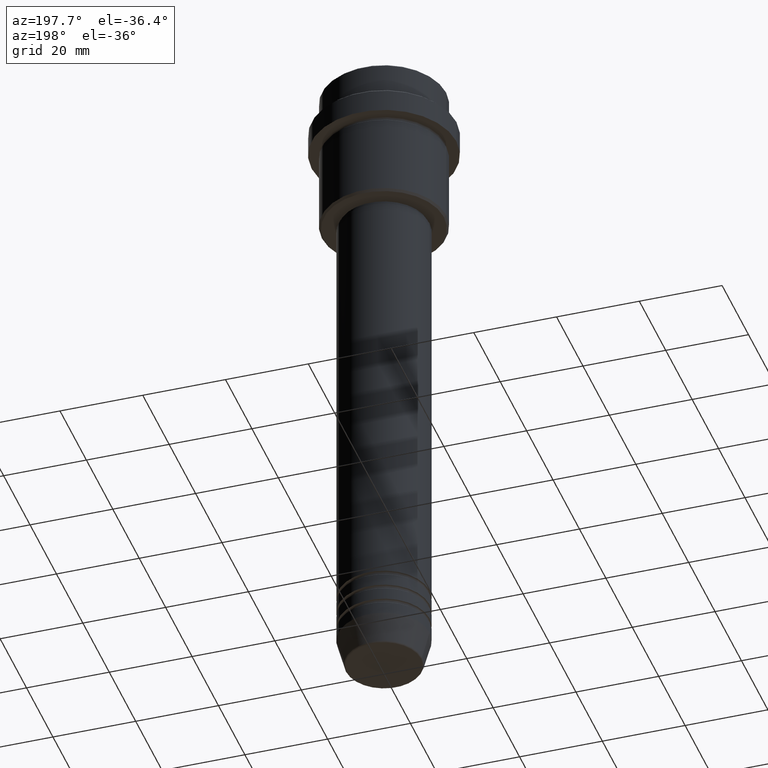
[diagram: clean part render]
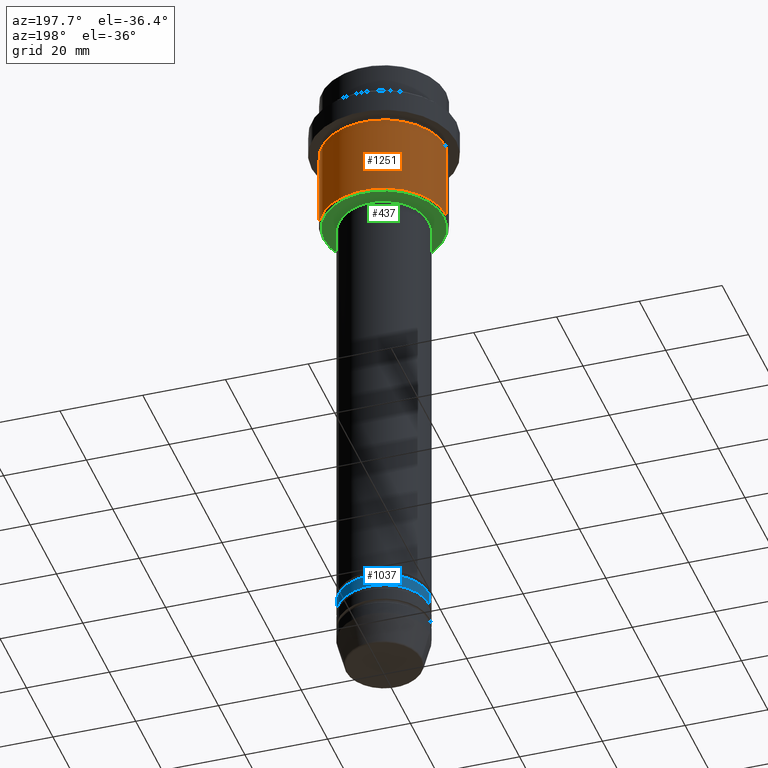
[diagram: same view with three faces highlighted in distinct colors, each labeled with its STEP entity id]
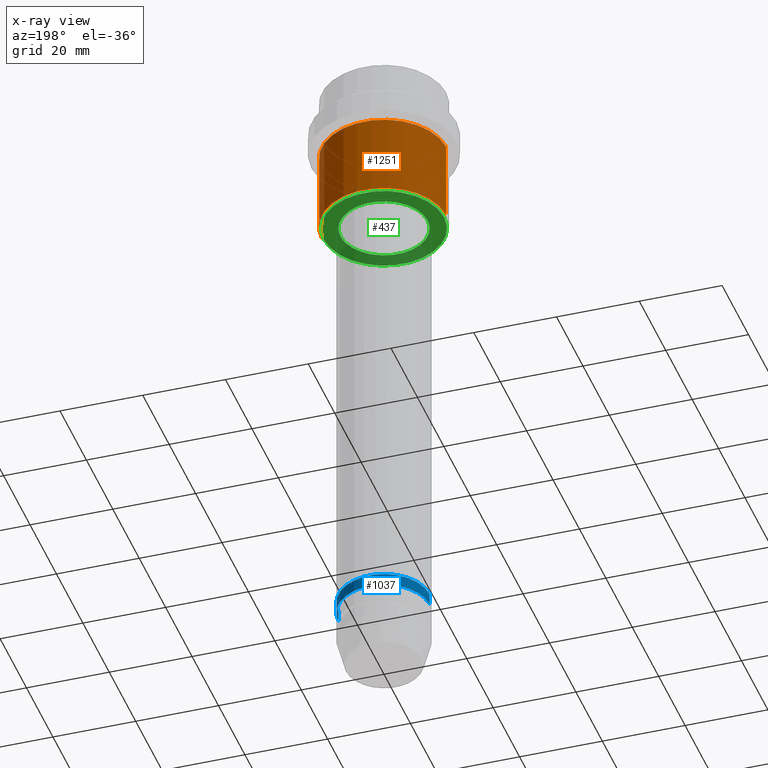
[diagram: x-ray of the same camera — body ghosted, the three highlighted faces saturated]
A machine part, auxiliary view with three faces highlighted in distinct colors.
The next image is the same camera in x-ray (body ghosted, the three faces saturated) — at least one of them is partly hidden behind the body in this view.
Their STEP definitions:

[orange] entity #1251 — the highlighted cylindrical surface (partial cylindrical patch) has radius 15 mm, axis along (-0, -0, 1).
#15 = CARTESIAN_POINT ( 'NONE',  ( 0.000000000000000000, 0.000000000000000000, -35.50000000000001421 ) ) ;
#19 = EDGE_CURVE ( 'NONE', #896, #31, #646, .T. ) ;
#31 = VERTEX_POINT ( 'NONE', #422 ) ;
#126 = DIRECTION ( 'NONE',  ( -0.000000000000000000, -0.000000000000000000, 1.000000000000000000 ) ) ;
#231 = EDGE_CURVE ( 'NONE', #896, #1415, #833, .T. ) ;
#234 = DIRECTION ( 'NONE',  ( -0.000000000000000000, -0.000000000000000000, 1.000000000000000000 ) ) ;
#256 = EDGE_CURVE ( 'NONE', #1415, #1168, #802, .T. ) ;
#342 = FACE_OUTER_BOUND ( 'NONE', #685, .T. ) ;
#403 = ORIENTED_EDGE ( 'NONE', *, *, #256, .T. ) ;
#422 = CARTESIAN_POINT ( 'NONE',  ( 15.00000000000000178, 0.000000000000000000, -16.00000000000000000 ) ) ;
#565 = DIRECTION ( 'NONE',  ( -1.000000000000000000, 0.000000000000000000, 0.000000000000000000 ) ) ;
#592 = DIRECTION ( 'NONE',  ( 1.000000000000000000, 0.000000000000000000, 0.000000000000000000 ) ) ;
#603 = DIRECTION ( 'NONE',  ( -0.000000000000000000, -0.000000000000000000, 1.000000000000000000 ) ) ;
#646 = LINE ( 'NONE', #1300, #1218 ) ;
#685 = EDGE_LOOP ( 'NONE', ( #745, #403, #740, #901 ) ) ;
#687 = CARTESIAN_POINT ( 'NONE',  ( -15.00000000000000355, 1.836970198721029983E-15, -16.00000000000000000 ) ) ;
#727 = CARTESIAN_POINT ( 'NONE',  ( 15.00000000000000000, 0.000000000000000000, -35.50000000000001421 ) ) ;
#740 = ORIENTED_EDGE ( 'NONE', *, *, #1320, .F. ) ;
#745 = ORIENTED_EDGE ( 'NONE', *, *, #231, .T. ) ;
#791 = DIRECTION ( 'NONE',  ( 1.000000000000000000, 0.000000000000000000, 0.000000000000000000 ) ) ;
#802 = LINE ( 'NONE', #1233, #1148 ) ;
#815 = CIRCLE ( 'NONE', #955, 15.00000000000000178 ) ;
#833 = CIRCLE ( 'NONE', #995, 15.00000000000000000 ) ;
#896 = VERTEX_POINT ( 'NONE', #727 ) ;
#901 = ORIENTED_EDGE ( 'NONE', *, *, #19, .F. ) ;
#955 = AXIS2_PLACEMENT_3D ( 'NONE', #1142, #603, #592 ) ;
#995 = AXIS2_PLACEMENT_3D ( 'NONE', #15, #126, #565 ) ;
#999 = CARTESIAN_POINT ( 'NONE',  ( 0.000000000000000000, 0.000000000000000000, 0.000000000000000000 ) ) ;
#1067 = DIRECTION ( 'NONE',  ( -0.000000000000000000, -0.000000000000000000, 1.000000000000000000 ) ) ;
#1096 = DIRECTION ( 'NONE',  ( -0.000000000000000000, -0.000000000000000000, 1.000000000000000000 ) ) ;
#1142 = CARTESIAN_POINT ( 'NONE',  ( 0.000000000000000000, 0.000000000000000000, -16.00000000000000000 ) ) ;
#1148 = VECTOR ( 'NONE', #1067, 1000.000000000000000 ) ;
#1168 = VERTEX_POINT ( 'NONE', #687 ) ;
#1216 = CYLINDRICAL_SURFACE ( 'NONE', #1377, 15.00000000000000000 ) ;
#1218 = VECTOR ( 'NONE', #1096, 1000.000000000000000 ) ;
#1233 = CARTESIAN_POINT ( 'NONE',  ( -15.00000000000000000, 1.836970198721029589E-15, 0.000000000000000000 ) ) ;
#1251 = ADVANCED_FACE ( 'NONE', ( #342 ), #1216, .T. ) ;
#1256 = CARTESIAN_POINT ( 'NONE',  ( -15.00000000000000000, 1.836970198721029589E-15, -35.50000000000001421 ) ) ;
#1300 = CARTESIAN_POINT ( 'NONE',  ( 15.00000000000000000, 0.000000000000000000, 0.000000000000000000 ) ) ;
#1320 = EDGE_CURVE ( 'NONE', #31, #1168, #815, .T. ) ;
#1377 = AXIS2_PLACEMENT_3D ( 'NONE', #999, #234, #791 ) ;
#1415 = VERTEX_POINT ( 'NONE', #1256 ) ;

[blue] entity #1037 — the highlighted cylindrical surface (partial cylindrical patch) has radius 11 mm, axis along (-0, -0, 1).
#98 = ORIENTED_EDGE ( 'NONE', *, *, #562, .F. ) ;
#99 = LINE ( 'NONE', #1079, #1175 ) ;
#111 = CARTESIAN_POINT ( 'NONE',  ( 11.00000000000000000, 0.000000000000000000, 0.000000000000000000 ) ) ;
#188 = EDGE_CURVE ( 'NONE', #693, #949, #526, .T. ) ;
#192 = DIRECTION ( 'NONE',  ( -0.000000000000000000, -0.000000000000000000, 1.000000000000000000 ) ) ;
#205 = FACE_OUTER_BOUND ( 'NONE', #1160, .T. ) ;
#248 = DIRECTION ( 'NONE',  ( -0.000000000000000000, -0.000000000000000000, 1.000000000000000000 ) ) ;
#331 = DIRECTION ( 'NONE',  ( 1.000000000000000000, 0.000000000000000000, 0.000000000000000000 ) ) ;
#334 = VERTEX_POINT ( 'NONE', #1061 ) ;
#372 = CARTESIAN_POINT ( 'NONE',  ( -11.00000000000000000, 1.347111479062088405E-15, -145.9999999999999147 ) ) ;
#401 = ORIENTED_EDGE ( 'NONE', *, *, #188, .T. ) ;
#526 = CIRCLE ( 'NONE', #1014, 11.00000000000000000 ) ;
#531 = AXIS2_PLACEMENT_3D ( 'NONE', #1093, #1182, #331 ) ;
#532 = CIRCLE ( 'NONE', #1331, 11.00000000000000000 ) ;
#536 = LINE ( 'NONE', #111, #1400 ) ;
#549 = EDGE_CURVE ( 'NONE', #949, #860, #99, .T. ) ;
#557 = DIRECTION ( 'NONE',  ( -0.000000000000000000, -0.000000000000000000, 1.000000000000000000 ) ) ;
#562 = EDGE_CURVE ( 'NONE', #693, #334, #536, .T. ) ;
#608 = ORIENTED_EDGE ( 'NONE', *, *, #1136, .F. ) ;
#612 = CARTESIAN_POINT ( 'NONE',  ( -11.00000000000000000, 1.347111479062088405E-15, -142.9999999999999147 ) ) ;
#693 = VERTEX_POINT ( 'NONE', #1121 ) ;
#756 = CYLINDRICAL_SURFACE ( 'NONE', #531, 11.00000000000000000 ) ;
#800 = CARTESIAN_POINT ( 'NONE',  ( 0.000000000000000000, 0.000000000000000000, -142.9999999999999147 ) ) ;
#860 = VERTEX_POINT ( 'NONE', #612 ) ;
#892 = DIRECTION ( 'NONE',  ( -0.000000000000000000, -0.000000000000000000, 1.000000000000000000 ) ) ;
#918 = DIRECTION ( 'NONE',  ( 1.000000000000000000, 0.000000000000000000, 0.000000000000000000 ) ) ;
#949 = VERTEX_POINT ( 'NONE', #372 ) ;
#1014 = AXIS2_PLACEMENT_3D ( 'NONE', #1239, #248, #1334 ) ;
#1037 = ADVANCED_FACE ( 'NONE', ( #205 ), #756, .T. ) ;
#1061 = CARTESIAN_POINT ( 'NONE',  ( 11.00000000000000000, 0.000000000000000000, -142.9999999999999147 ) ) ;
#1079 = CARTESIAN_POINT ( 'NONE',  ( -11.00000000000000000, 1.347111479062088405E-15, 0.000000000000000000 ) ) ;
#1093 = CARTESIAN_POINT ( 'NONE',  ( 0.000000000000000000, 0.000000000000000000, 0.000000000000000000 ) ) ;
#1121 = CARTESIAN_POINT ( 'NONE',  ( 11.00000000000000000, 0.000000000000000000, -145.9999999999999147 ) ) ;
#1136 = EDGE_CURVE ( 'NONE', #334, #860, #532, .T. ) ;
#1160 = EDGE_LOOP ( 'NONE', ( #401, #1241, #608, #98 ) ) ;
#1175 = VECTOR ( 'NONE', #192, 1000.000000000000000 ) ;
#1182 = DIRECTION ( 'NONE',  ( -0.000000000000000000, -0.000000000000000000, 1.000000000000000000 ) ) ;
#1239 = CARTESIAN_POINT ( 'NONE',  ( 0.000000000000000000, 0.000000000000000000, -145.9999999999999147 ) ) ;
#1241 = ORIENTED_EDGE ( 'NONE', *, *, #549, .T. ) ;
#1331 = AXIS2_PLACEMENT_3D ( 'NONE', #800, #892, #918 ) ;
#1334 = DIRECTION ( 'NONE',  ( 1.000000000000000000, 0.000000000000000000, 0.000000000000000000 ) ) ;
#1400 = VECTOR ( 'NONE', #557, 1000.000000000000000 ) ;

[green] entity #437 — the highlighted planar face has unit normal (0, 0, -1).
#5 = CARTESIAN_POINT ( 'NONE',  ( 0.000000000000000000, 0.000000000000000000, -35.99999999999999289 ) ) ;
#11 = AXIS2_PLACEMENT_3D ( 'NONE', #1010, #897, #124 ) ;
#28 = AXIS2_PLACEMENT_3D ( 'NONE', #967, #1161, #84 ) ;
#84 = DIRECTION ( 'NONE',  ( -1.000000000000000000, 0.000000000000000000, -0.000000000000000000 ) ) ;
#89 = CARTESIAN_POINT ( 'NONE',  ( -10.49999999999999289, 1.285879139104720042E-15, -35.99999999999999289 ) ) ;
#124 = DIRECTION ( 'NONE',  ( 1.000000000000000000, 0.000000000000000000, 0.000000000000000000 ) ) ;
#155 = CIRCLE ( 'NONE', #1328, 10.49999999999999289 ) ;
#161 = CARTESIAN_POINT ( 'NONE',  ( -14.50000000000003908, 1.806354028742348168E-15, -35.99999999999999289 ) ) ;
#254 = CARTESIAN_POINT ( 'NONE',  ( 0.000000000000000000, 0.000000000000000000, -35.99999999999999289 ) ) ;
#263 = CARTESIAN_POINT ( 'NONE',  ( 0.000000000000000000, 0.000000000000000000, -35.99999999999999289 ) ) ;
#284 = EDGE_LOOP ( 'NONE', ( #1111, #1259 ) ) ;
#437 = ADVANCED_FACE ( 'NONE', ( #1281, #520 ), #1156, .T. ) ;
#443 = DIRECTION ( 'NONE',  ( 0.000000000000000000, 0.000000000000000000, -1.000000000000000000 ) ) ;
#513 = VERTEX_POINT ( 'NONE', #1381 ) ;
#519 = EDGE_CURVE ( 'NONE', #671, #1166, #155, .T. ) ;
#520 = FACE_BOUND ( 'NONE', #284, .T. ) ;
#572 = CARTESIAN_POINT ( 'NONE',  ( 10.49999999999999289, 0.000000000000000000, -35.99999999999999289 ) ) ;
#610 = EDGE_CURVE ( 'NONE', #513, #843, #771, .T. ) ;
#650 = CIRCLE ( 'NONE', #926, 14.50000000000003908 ) ;
#671 = VERTEX_POINT ( 'NONE', #89 ) ;
#700 = ORIENTED_EDGE ( 'NONE', *, *, #610, .T. ) ;
#747 = DIRECTION ( 'NONE',  ( -0.000000000000000000, -0.000000000000000000, 1.000000000000000000 ) ) ;
#771 = CIRCLE ( 'NONE', #904, 14.50000000000003908 ) ;
#784 = EDGE_CURVE ( 'NONE', #843, #513, #650, .T. ) ;
#829 = DIRECTION ( 'NONE',  ( 1.000000000000000000, 0.000000000000000000, 0.000000000000000000 ) ) ;
#843 = VERTEX_POINT ( 'NONE', #161 ) ;
#868 = DIRECTION ( 'NONE',  ( -1.000000000000000000, 0.000000000000000000, 0.000000000000000000 ) ) ;
#897 = DIRECTION ( 'NONE',  ( -0.000000000000000000, -0.000000000000000000, 1.000000000000000000 ) ) ;
#904 = AXIS2_PLACEMENT_3D ( 'NONE', #5, #443, #868 ) ;
#907 = CIRCLE ( 'NONE', #11, 10.49999999999999289 ) ;
#926 = AXIS2_PLACEMENT_3D ( 'NONE', #254, #1125, #1035 ) ;
#967 = CARTESIAN_POINT ( 'NONE',  ( 0.000000000000000000, 15.00000000000000000, -35.99999999999999289 ) ) ;
#1010 = CARTESIAN_POINT ( 'NONE',  ( 0.000000000000000000, 0.000000000000000000, -35.99999999999999289 ) ) ;
#1027 = EDGE_LOOP ( 'NONE', ( #700, #1204 ) ) ;
#1035 = DIRECTION ( 'NONE',  ( -1.000000000000000000, 0.000000000000000000, 0.000000000000000000 ) ) ;
#1111 = ORIENTED_EDGE ( 'NONE', *, *, #1177, .T. ) ;
#1125 = DIRECTION ( 'NONE',  ( 0.000000000000000000, 0.000000000000000000, -1.000000000000000000 ) ) ;
#1156 = PLANE ( 'NONE',  #28 ) ;
#1161 = DIRECTION ( 'NONE',  ( 0.000000000000000000, 0.000000000000000000, -1.000000000000000000 ) ) ;
#1166 = VERTEX_POINT ( 'NONE', #572 ) ;
#1177 = EDGE_CURVE ( 'NONE', #1166, #671, #907, .T. ) ;
#1204 = ORIENTED_EDGE ( 'NONE', *, *, #784, .T. ) ;
#1259 = ORIENTED_EDGE ( 'NONE', *, *, #519, .T. ) ;
#1281 = FACE_OUTER_BOUND ( 'NONE', #1027, .T. ) ;
#1328 = AXIS2_PLACEMENT_3D ( 'NONE', #263, #747, #829 ) ;
#1381 = CARTESIAN_POINT ( 'NONE',  ( 14.50000000000003908, 0.000000000000000000, -35.99999999999999289 ) ) ;